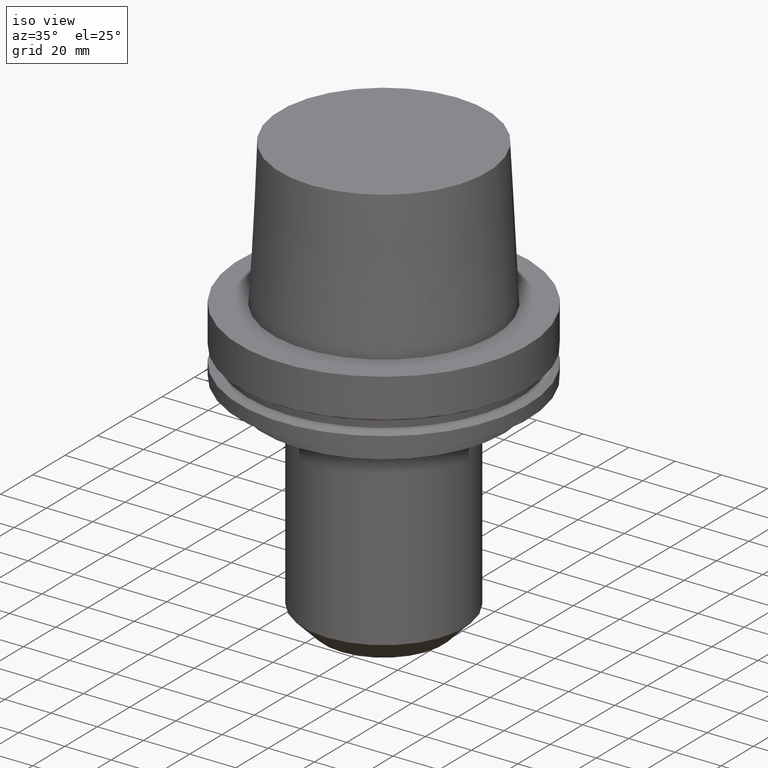
[diagram: clean part render]
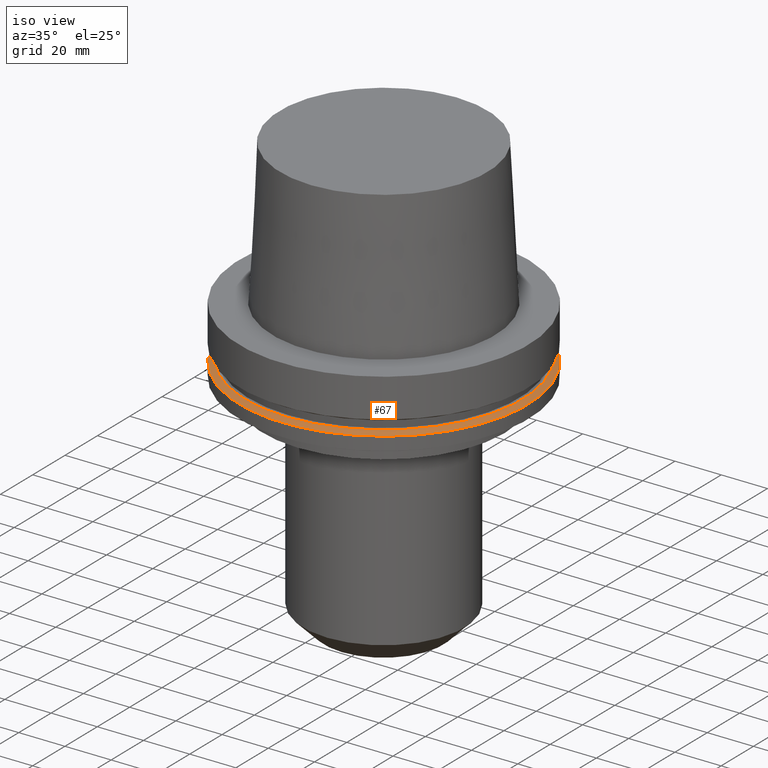
[diagram: same view with one face highlighted and labeled with its STEP entity id]
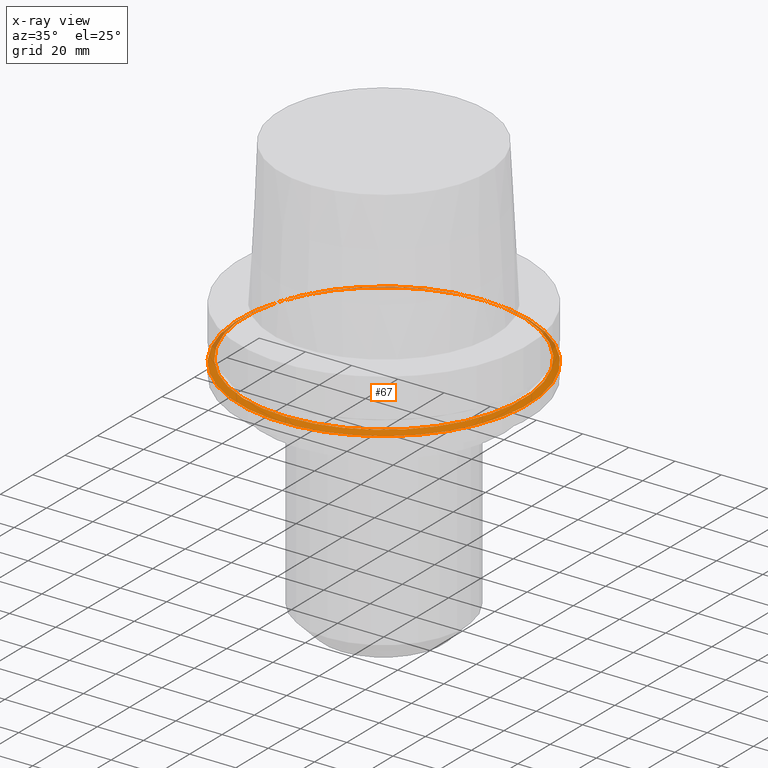
[diagram: x-ray of the same camera — body ghosted, the highlighted face saturated]
A machine part, iso view. The second image highlights one B-rep face of the part: STEP entity #67.
The next image is the same camera in x-ray: the body ghosted, the highlighted face saturated — about 12% of this face is hidden behind the body in this view.
In plain terms, the highlighted conical surface has half-angle 60 deg.
Its self-contained STEP definition (entity closure, byte-faithful):
#67=ADVANCED_FACE('Unnamed[1]',(#171,#172),#173,.T.);
#84=EDGE_CURVE('Unnamed[1]',#199,#199,#200,.T.);
#109=EDGE_CURVE('Unnamed[1]',#238,#238,#239,.T.);
#171=FACE_BOUND('',#314,.T.);
#172=FACE_BOUND('',#315,.T.);
#173=CONICAL_SURFACE('',#316,61.311297632097,1.04719755119646);
#199=VERTEX_POINT('',#349);
#200=CIRCLE('',#350,60.1225952641939);
#238=VERTEX_POINT('',#399);
#239=CIRCLE('',#400,62.5);
#314=EDGE_LOOP('',(#477));
#315=EDGE_LOOP('',(#478));
#316=AXIS2_PLACEMENT_3D('',#479,#480,#481);
#349=CARTESIAN_POINT('',(1.33945743656747E-015,60.1225952641939,-21.8750000000009));
#350=AXIS2_PLACEMENT_3D('',#509,#510,#511);
#399=CARTESIAN_POINT('',(1.42350465640827E-015,62.5,-23.2475952641916));
#400=AXIS2_PLACEMENT_3D('',#551,#552,#553);
#477=ORIENTED_EDGE('',*,*,#109,.F.);
#478=ORIENTED_EDGE('',*,*,#84,.T.);
#479=CARTESIAN_POINT('',(1.38148104648787E-015,2.76296209297574E-015,-22.5612976320963));
#480=DIRECTION('',(6.12323399573677E-017,1.22464679914735E-016,-1.0));
#481=DIRECTION('',(-1.23259516440783E-032,1.0,1.22464679914735E-016));
#509=CARTESIAN_POINT('',(1.33945743656747E-015,2.67891487313495E-015,-21.8750000000009));
#510=DIRECTION('',(6.12323399573677E-017,1.22464679914735E-016,-1.0));
#511=DIRECTION('',(-1.23259516440783E-032,1.0,1.22464679914735E-016));
#551=CARTESIAN_POINT('',(1.42350465640827E-015,2.84700931281654E-015,-23.2475952641916));
#552=DIRECTION('',(6.12323399573677E-017,1.22464679914735E-016,-1.0));
#553=DIRECTION('',(-1.23259516440783E-032,1.0,1.22464679914735E-016));